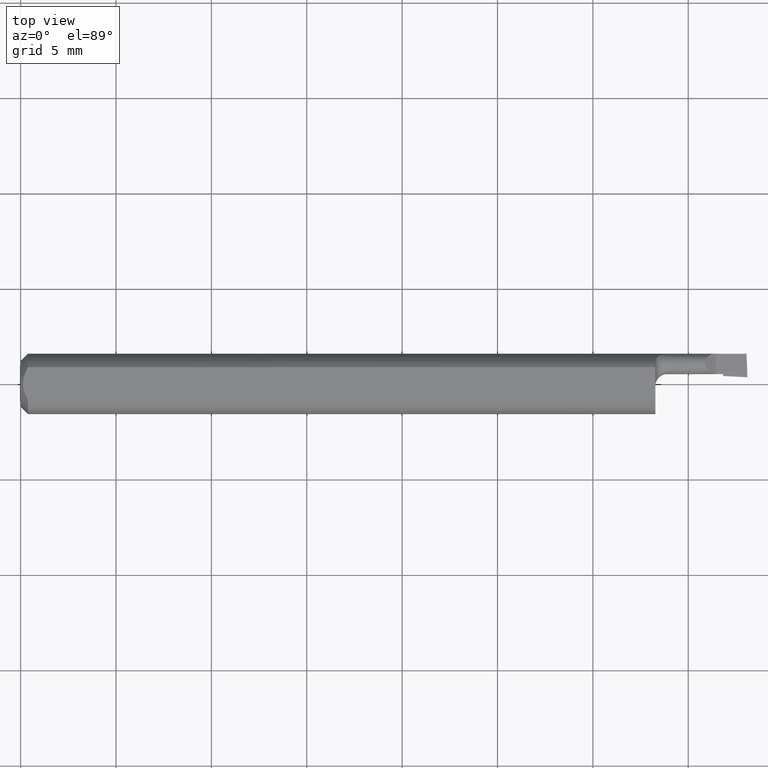
[diagram: clean part render]
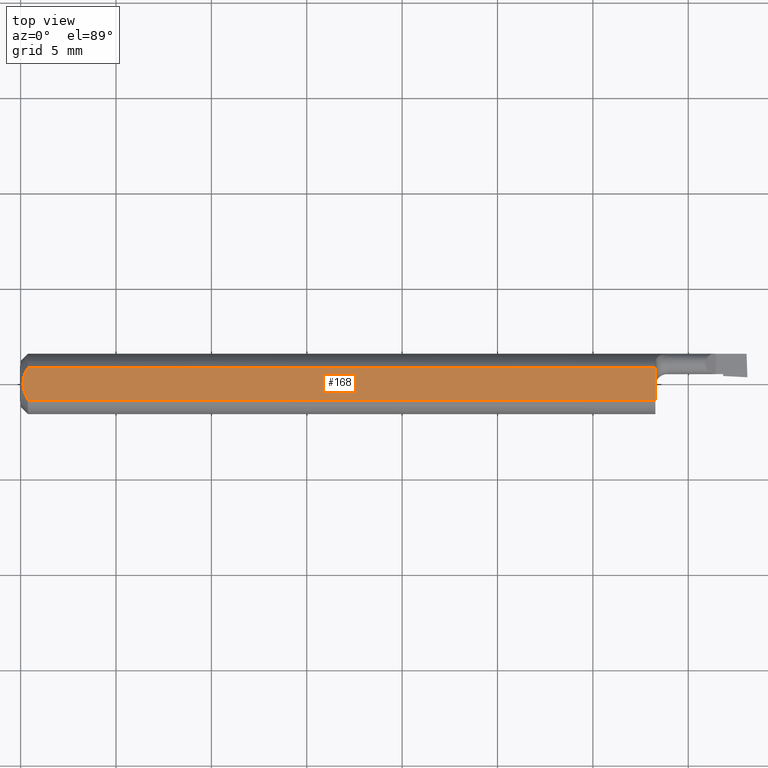
[diagram: same view with one face highlighted and labeled with its STEP entity id]
A machine part, top view. The second image highlights one B-rep face of the part: STEP entity #168.
In plain terms, the highlighted planar face has unit normal (0, -0, -1).
Its self-contained STEP definition (entity closure, byte-faithful):
#34 = DIRECTION ( 'NONE',  ( 1.000000000000000000, 0.000000000000000000, 0.000000000000000000 ) ) ;
#46 = DIRECTION ( 'NONE',  ( -1.000000000000000000, -0.000000000000000000, -0.000000000000000000 ) ) ;
#87 = VERTEX_POINT ( 'NONE', #88 ) ;
#88 = CARTESIAN_POINT ( 'NONE',  ( 0.004999999999989933504, 7.898418140378181697E-16, 0.05235000000000000070 ) ) ;
#94 = ORIENTED_EDGE ( 'NONE', *, *, #236, .F. ) ;
#100 = VECTOR ( 'NONE', #46, 39.37007874015748143 ) ;
#101 = CARTESIAN_POINT ( 'NONE',  ( 1.310000000000000053, -0.03386738844380023788, 0.05235000000000000070 ) ) ;
#116 = B_SPLINE_CURVE_WITH_KNOTS ( 'NONE', 3,
 ( #541, #280, #587, #546, #275, #165 ),
 .UNSPECIFIED., .F., .F.,
 ( 4, 2, 4 ),
 ( 0.003037199019464981685, 0.003488061124369675782, 0.003938923229274369879 ),
 .UNSPECIFIED. ) ;
#117 = VERTEX_POINT ( 'NONE', #309 ) ;
#126 = B_SPLINE_CURVE_WITH_KNOTS ( 'NONE', 3,
 ( #613, #339, #343, #648, #286, #391 ),
 .UNSPECIFIED., .F., .F.,
 ( 4, 2, 4 ),
 ( 0.002133667072902290657, 0.002585433046183636171, 0.003037199019464981685 ),
 .UNSPECIFIED. ) ;
#138 = EDGE_LOOP ( 'NONE', ( #206, #181, #94, #612, #358 ) ) ;
#149 = CARTESIAN_POINT ( 'NONE',  ( 0.01500000000000000465, 0.03386738844375223462, 0.05234999999999997988 ) ) ;
#165 = CARTESIAN_POINT ( 'NONE',  ( 0.01500000000000000465, 0.03386738844375223462, 0.05234999999999997988 ) ) ;
#168 = ADVANCED_FACE ( 'NONE', ( #354 ), #409, .F. ) ;
#178 = EDGE_CURVE ( 'NONE', #684, #117, #615, .T. ) ;
#181 = ORIENTED_EDGE ( 'NONE', *, *, #341, .T. ) ;
#206 = ORIENTED_EDGE ( 'NONE', *, *, #178, .F. ) ;
#215 = LINE ( 'NONE', #227, #321 ) ;
#227 = CARTESIAN_POINT ( 'NONE',  ( 1.310000000000000053, 0.1123499999999999915, 0.05234999999999998682 ) ) ;
#236 = EDGE_CURVE ( 'NONE', #371, #250, #292, .T. ) ;
#250 = VERTEX_POINT ( 'NONE', #270 ) ;
#265 = EDGE_CURVE ( 'NONE', #87, #371, #116, .T. ) ;
#270 = CARTESIAN_POINT ( 'NONE',  ( 1.310000000000000053, 0.03386738844375224156, 0.05235000000000000070 ) ) ;
#275 = CARTESIAN_POINT ( 'NONE',  ( 0.01218518006020414754, 0.02868529347538064517, 0.05234999999999998682 ) ) ;
#280 = CARTESIAN_POINT ( 'NONE',  ( 0.004999999999999268051, 0.005945714695019509340, 0.05235000000000000070 ) ) ;
#286 = CARTESIAN_POINT ( 'NONE',  ( 0.004999999999998882075, -0.005957634400466951113, 0.05235000000000000070 ) ) ;
#292 = LINE ( 'NONE', #298, #522 ) ;
#298 = CARTESIAN_POINT ( 'NONE',  ( 0.000000000000000000, 0.03386738844375223462, 0.05234999999999997988 ) ) ;
#306 = DIRECTION ( 'NONE',  ( 0.000000000000000000, -7.598598113218357399E-17, -1.000000000000000000 ) ) ;
#309 = CARTESIAN_POINT ( 'NONE',  ( 0.01500000000000185039, -0.03386738844380016850, 0.05235000000000000070 ) ) ;
#321 = VECTOR ( 'NONE', #433, 39.37007874015748143 ) ;
#339 = CARTESIAN_POINT ( 'NONE',  ( 0.01216137397042176167, -0.02864146636719541034, 0.05235000000000000070 ) ) ;
#341 = EDGE_CURVE ( 'NONE', #684, #250, #215, .T. ) ;
#343 = CARTESIAN_POINT ( 'NONE',  ( 0.009678036133109300596, -0.02325481837211496039, 0.05235000000000000070 ) ) ;
#344 = AXIS2_PLACEMENT_3D ( 'NONE', #661, #306, #520 ) ;
#354 = FACE_OUTER_BOUND ( 'NONE', #138, .T. ) ;
#358 = ORIENTED_EDGE ( 'NONE', *, *, #492, .F. ) ;
#371 = VERTEX_POINT ( 'NONE', #149 ) ;
#391 = CARTESIAN_POINT ( 'NONE',  ( 0.004999999999989933504, 7.898418140378181697E-16, 0.05235000000000000070 ) ) ;
#409 = PLANE ( 'NONE',  #344 ) ;
#433 = DIRECTION ( 'NONE',  ( 0.000000000000000000, 1.000000000000000000, -7.598598113218357399E-17 ) ) ;
#492 = EDGE_CURVE ( 'NONE', #117, #87, #126, .T. ) ;
#520 = DIRECTION ( 'NONE',  ( 0.000000000000000000, 1.000000000000000000, -7.598598113218357399E-17 ) ) ;
#522 = VECTOR ( 'NONE', #34, 39.37007874015748143 ) ;
#541 = CARTESIAN_POINT ( 'NONE',  ( 0.004999999999989933504, 7.898418140378181697E-16, 0.05235000000000000070 ) ) ;
#546 = CARTESIAN_POINT ( 'NONE',  ( 0.009669996313769781138, 0.02323004575534280344, 0.05234999999999997988 ) ) ;
#555 = CARTESIAN_POINT ( 'NONE',  ( 0.000000000000000000, -0.03386738844375222768, 0.05234999999999997988 ) ) ;
#587 = CARTESIAN_POINT ( 'NONE',  ( 0.006064493299689846517, 0.01189382783781396842, 0.05235000000000000764 ) ) ;
#612 = ORIENTED_EDGE ( 'NONE', *, *, #265, .F. ) ;
#613 = CARTESIAN_POINT ( 'NONE',  ( 0.01500000000000185039, -0.03386738844380016850, 0.05235000000000000070 ) ) ;
#615 = LINE ( 'NONE', #555, #100 ) ;
#648 = CARTESIAN_POINT ( 'NONE',  ( 0.006057557792978136152, -0.01187252718384440922, 0.05234999999999998682 ) ) ;
#661 = CARTESIAN_POINT ( 'NONE',  ( 1.500000000000000222, 0.1123499999999999915, 0.05234999999999998682 ) ) ;
#684 = VERTEX_POINT ( 'NONE', #101 ) ;